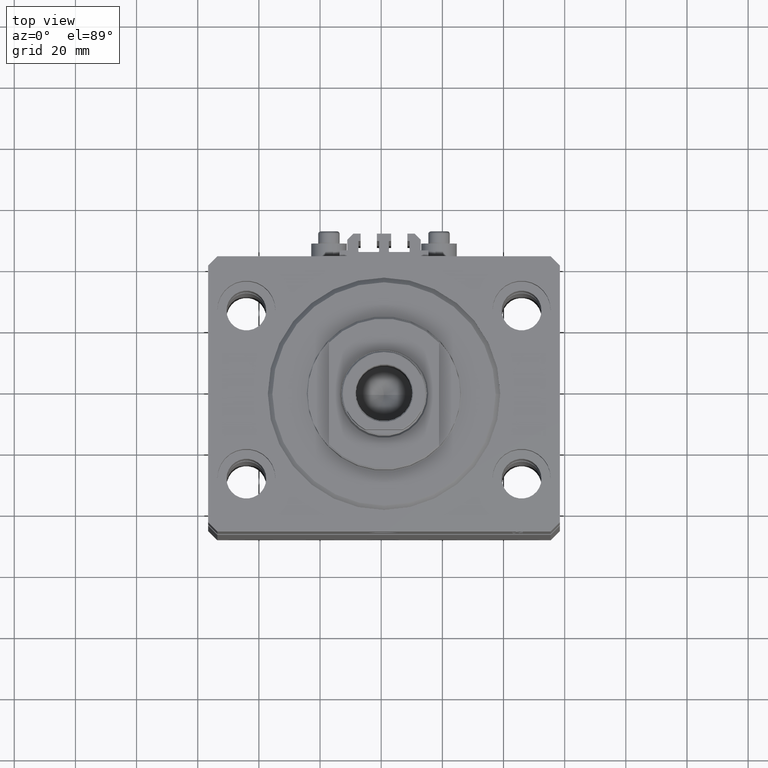
[diagram: clean part render]
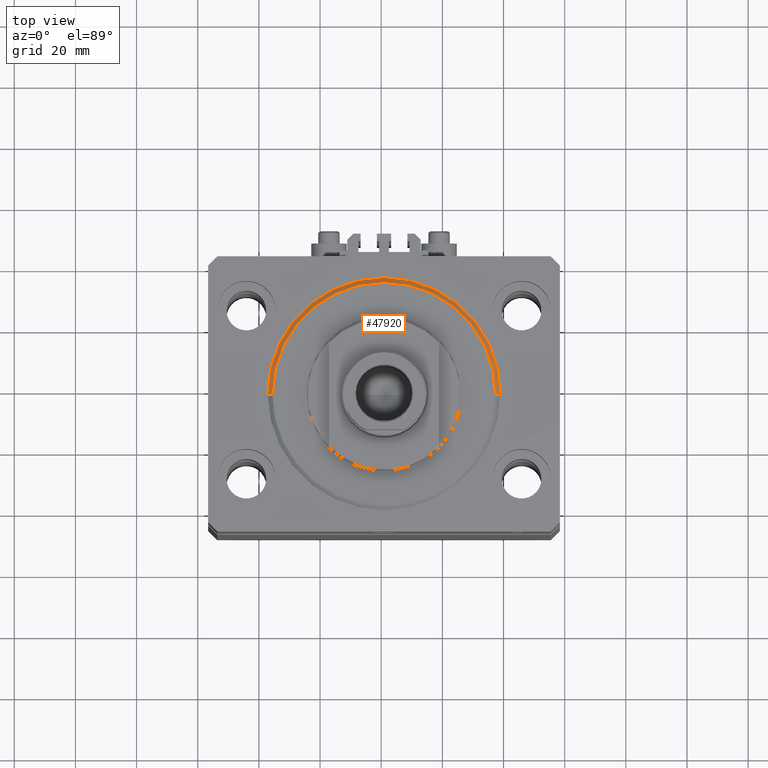
[diagram: same view with one face highlighted and labeled with its STEP entity id]
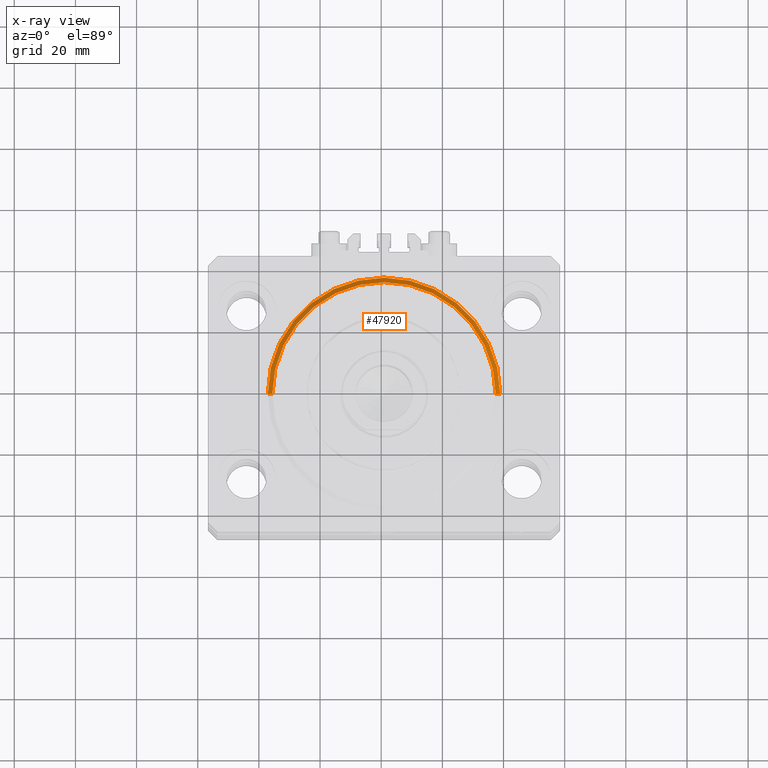
[diagram: x-ray of the same camera — body ghosted, the highlighted face saturated]
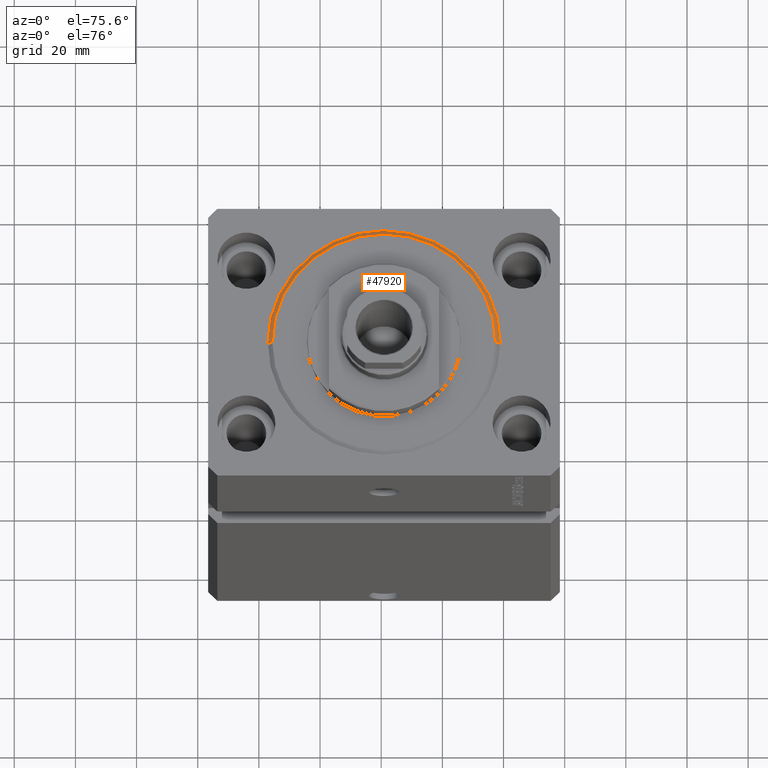
[diagram: same view with one face highlighted and labeled with its STEP entity id]
A machine part, top view. The second image highlights one B-rep face of the part: STEP entity #47920.
The next image is the same camera in x-ray: the body ghosted, the highlighted face saturated — about 0% of this face is hidden behind the body in this view.
A second angle (auxiliary view) of the same face is appended — the face is thin or edge-on in the first view.
In plain terms, the highlighted conical surface has half-angle 45 deg.
Its self-contained STEP definition (entity closure, byte-faithful):
#372 = DIRECTION ( 'NONE',  ( 1.000000000000000000, 0.000000000000000000, 0.000000000000000000 ) ) ;
#1850 = ORIENTED_EDGE ( 'NONE', *, *, #39977, .T. ) ;
#3845 = FACE_OUTER_BOUND ( 'NONE', #5922, .T. ) ;
#4501 = CARTESIAN_POINT ( 'NONE',  ( 0.000000000000000000, 0.000000000000000000, 0.000000000000000000 ) ) ;
#5094 = EDGE_CURVE ( 'NONE', #40429, #11386, #26210, .T. ) ;
#5305 = VERTEX_POINT ( 'NONE', #16038 ) ;
#5922 = EDGE_LOOP ( 'NONE', ( #31181, #1850, #42165, #34281 ) ) ;
#7813 = CARTESIAN_POINT ( 'NONE',  ( 0.000000000000000000, 0.000000000000000000, 1.499999999999987566 ) ) ;
#9816 = CARTESIAN_POINT ( 'NONE',  ( 38.00000000000000000, 4.653657836759941941E-15, 1.499999999999987566 ) ) ;
#11386 = VERTEX_POINT ( 'NONE', #38317 ) ;
#16038 = CARTESIAN_POINT ( 'NONE',  ( -38.00000000000000000, 0.000000000000000000, 1.499999999999987566 ) ) ;
#18989 = DIRECTION ( 'NONE',  ( -0.000000000000000000, -0.000000000000000000, 1.000000000000000000 ) ) ;
#19594 = DIRECTION ( 'NONE',  ( -0.000000000000000000, -0.000000000000000000, 1.000000000000000000 ) ) ;
#19717 = DIRECTION ( 'NONE',  ( -0.7071067811865507924, 8.659560562354972301E-17, 0.7071067811865441310 ) ) ;
#20656 = AXIS2_PLACEMENT_3D ( 'NONE', #4501, #22653, #48800 ) ;
#22653 = DIRECTION ( 'NONE',  ( -0.000000000000000000, -0.000000000000000000, -1.000000000000000000 ) ) ;
#23077 = CARTESIAN_POINT ( 'NONE',  ( 0.000000000000000000, 0.000000000000000000, 1.499999999999987566 ) ) ;
#26210 = CIRCLE ( 'NONE', #20656, 36.50000000000000000 ) ;
#26537 = VECTOR ( 'NONE', #19717, 1000.000000000000114 ) ;
#26706 = CARTESIAN_POINT ( 'NONE',  ( -38.00000000000000000, 4.653657836759941152E-15, 1.499999999999987566 ) ) ;
#27483 = CONICAL_SURFACE ( 'NONE', #33073, 38.00000000000000000, 0.7853981633974529419 ) ;
#31181 = ORIENTED_EDGE ( 'NONE', *, *, #5094, .F. ) ;
#32563 = EDGE_CURVE ( 'NONE', #32875, #5305, #35042, .T. ) ;
#32875 = VERTEX_POINT ( 'NONE', #9816 ) ;
#33073 = AXIS2_PLACEMENT_3D ( 'NONE', #7813, #18989, #372 ) ;
#34281 = ORIENTED_EDGE ( 'NONE', *, *, #38968, .F. ) ;
#34405 = CARTESIAN_POINT ( 'NONE',  ( 38.00000000000000000, 0.000000000000000000, 1.499999999999987566 ) ) ;
#35042 = CIRCLE ( 'NONE', #39023, 38.00000000000000000 ) ;
#37919 = LINE ( 'NONE', #26706, #26537 ) ;
#38142 = LINE ( 'NONE', #34405, #44819 ) ;
#38317 = CARTESIAN_POINT ( 'NONE',  ( 36.50000000000000000, 0.000000000000000000, 0.000000000000000000 ) ) ;
#38968 = EDGE_CURVE ( 'NONE', #11386, #32875, #38142, .T. ) ;
#39023 = AXIS2_PLACEMENT_3D ( 'NONE', #23077, #19594, #46239 ) ;
#39977 = EDGE_CURVE ( 'NONE', #40429, #5305, #37919, .T. ) ;
#40429 = VERTEX_POINT ( 'NONE', #48946 ) ;
#42165 = ORIENTED_EDGE ( 'NONE', *, *, #32563, .F. ) ;
#44819 = VECTOR ( 'NONE', #45376, 1000.000000000000114 ) ;
#45376 = DIRECTION ( 'NONE',  ( 0.7071067811865507924, 0.000000000000000000, 0.7071067811865441310 ) ) ;
#46239 = DIRECTION ( 'NONE',  ( 1.000000000000000000, 0.000000000000000000, 0.000000000000000000 ) ) ;
#47920 = ADVANCED_FACE ( 'NONE', ( #3845 ), #27483, .T. ) ;
#48800 = DIRECTION ( 'NONE',  ( 1.000000000000000000, 0.000000000000000000, 0.000000000000000000 ) ) ;
#48946 = CARTESIAN_POINT ( 'NONE',  ( -36.50000000000000000, 4.561809326823889791E-15, 0.000000000000000000 ) ) ;